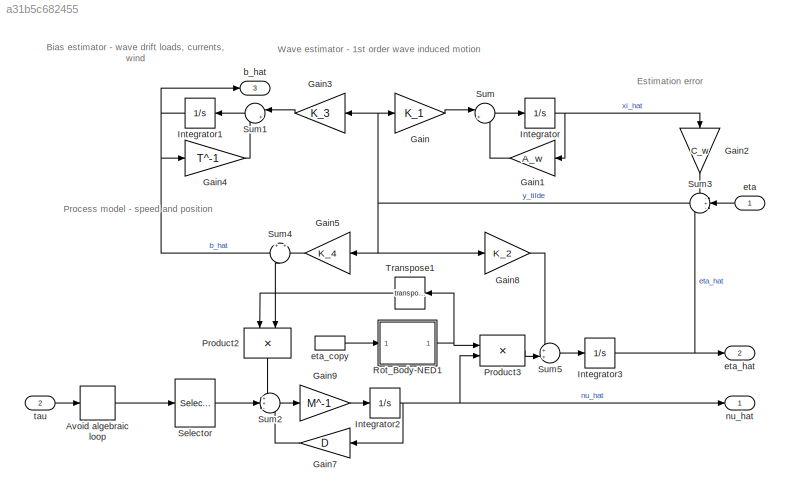
MODEL slx_a31b5c682455
KIND model
CONFIG AbsTol = auto
CONFIG EnableMultiTasking = off
CONFIG FixedStep = 0.1
CONFIG MaxStep = auto
CONFIG MinStep = auto
CONFIG RelTol = 1e-3
CONFIG SampleTimeConstraint = Unconstrained
CONFIG Solver = FixedStepAuto
CONFIG SolverName = FixedStepAuto
CONFIG StartTime = 0.0
CONFIG StopTime = 300
BLOCK [Delay] Avoid algebraic loop
  DelayLength = 1
  InputPortMap = u0
  Ports = [1, 1]
BLOCK [Gain] Gain
  Gain = K_1
  Multiplication = Matrix(K*u)
  OutDataTypeStr = Inherit: Inherit via internal rule
  ParamDataTypeStr = Inherit: Inherit via internal rule
  SaturateOnIntegerOverflow = off
BLOCK [Gain] Gain1
  Gain = A_w
  Multiplication = Matrix(K*u)
  OutDataTypeStr = Inherit: Inherit via internal rule
  ParamDataTypeStr = Inherit: Inherit via internal rule
  SaturateOnIntegerOverflow = off
BLOCK [Gain] Gain2
  Gain = C_w
  Multiplication = Matrix(K*u)
  OutDataTypeStr = Inherit: Inherit via internal rule
  ParamDataTypeStr = Inherit: Inherit via internal rule
  SaturateOnIntegerOverflow = off
BLOCK [Gain] Gain3
  Gain = K_3
  Multiplication = Matrix(K*u)
  OutDataTypeStr = Inherit: Inherit via internal rule
  ParamDataTypeStr = Inherit: Inherit via internal rule
  SaturateOnIntegerOverflow = off
BLOCK [Gain] Gain4
  Gain = T^-1
  Multiplication = Matrix(K*u)
  OutDataTypeStr = Inherit: Inherit via internal rule
  ParamDataTypeStr = Inherit: Inherit via internal rule
  SaturateOnIntegerOverflow = off
BLOCK [Gain] Gain5
  Gain = K_4
  Multiplication = Matrix(K*u)
  OutDataTypeStr = Inherit: Inherit via internal rule
  ParamDataTypeStr = Inherit: Inherit via internal rule
  SaturateOnIntegerOverflow = off
BLOCK [Gain] Gain7
  Gain = D
  Multiplication = Matrix(K*u)
  OutDataTypeStr = Inherit: Inherit via internal rule
  ParamDataTypeStr = Inherit: Inherit via internal rule
  SaturateOnIntegerOverflow = off
BLOCK [Gain] Gain8
  Gain = K_2
  Multiplication = Matrix(K*u)
  OutDataTypeStr = Inherit: Inherit via internal rule
  ParamDataTypeStr = Inherit: Inherit via internal rule
  SaturateOnIntegerOverflow = off
BLOCK [Gain] Gain9
  Gain = M^-1
  Multiplication = Matrix(K*u)
  OutDataTypeStr = Inherit: Inherit via internal rule
  ParamDataTypeStr = Inherit: Inherit via internal rule
  SaturateOnIntegerOverflow = off
BLOCK [Integrator] Integrator
  Ports = [1, 1]
BLOCK [Integrator] Integrator1
  Ports = [1, 1]
BLOCK [Integrator] Integrator2
  Ports = [1, 1]
BLOCK [Integrator] Integrator3
  Ports = [1, 1]
BLOCK [Product] Product2
  InputSameDT = off
  Multiplication = Matrix(*)
  OutDataTypeStr = Inherit: Inherit via internal rule
  Ports = [2, 1]
  RndMeth = Floor
  SaturateOnIntegerOverflow = off
BLOCK [Product] Product3
  InputSameDT = off
  Multiplication = Matrix(*)
  OutDataTypeStr = Inherit: Inherit via internal rule
  Ports = [2, 1]
  RndMeth = Floor
  SaturateOnIntegerOverflow = off
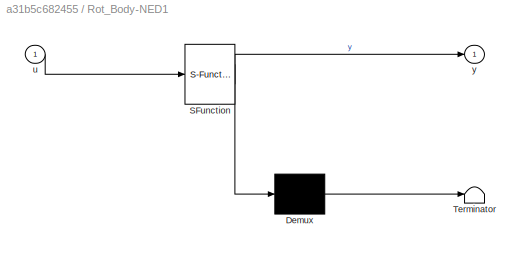
BLOCK [SubSystem] Rot_Body-NED1
  ErrorFcn = Stateflow.Translate.translate
  PermitHierarchicalResolution = ExplicitOnly
  Ports = [1, 1]
  RequestExecContextInheritance = off
  SFBlockType = MATLAB Function
  TreatAsAtomicUnit = on
BLOCK [Demux] Rot_Body-NED1/ Demux 
  Outputs = 1
  Ports = [1, 1]
BLOCK [S-Function] Rot_Body-NED1/ SFunction 
  EnableBusSupport = on
  FunctionName = sf_sfun
  PortCounts = [1 2]
  Ports = [1, 2]
  SFcnIsStateOwnerBlock = off
  SFunctionDeploymentMode = off
  Tag = Stateflow S-Function NPO 2
BLOCK [Terminator] Rot_Body-NED1/ Terminator 
BLOCK [Inport] Rot_Body-NED1/u
  IconDisplay = Port number
BLOCK [Outport] Rot_Body-NED1/y
  IconDisplay = Port number
BLOCK [Selector] Selector
  IndexOptions = Index vector (dialog)
  Indices = [1 2 6]
  InputPortWidth = 6
  OutputSizes = 1
  Ports = [1, 1]
BLOCK [Sum] Sum
  IconShape = round
  InputSameDT = off
  Inputs = |++
  OutDataTypeStr = Inherit: Inherit via internal rule
  Ports = [2, 1]
  SaturateOnIntegerOverflow = off
BLOCK [Sum] Sum1
  IconShape = round
  InputSameDT = off
  Inputs = |+-
  OutDataTypeStr = Inherit: Inherit via internal rule
  Ports = [2, 1]
  SaturateOnIntegerOverflow = off
BLOCK [Sum] Sum2
  IconShape = round
  InputSameDT = off
  Inputs = ++-
  OutDataTypeStr = Inherit: Inherit via internal rule
  Ports = [3, 1]
  SaturateOnIntegerOverflow = off
BLOCK [Sum] Sum3
  IconShape = round
  InputSameDT = off
  Inputs = -+-
  OutDataTypeStr = Inherit: Inherit via internal rule
  Ports = [3, 1]
  SaturateOnIntegerOverflow = off
BLOCK [Sum] Sum4
  IconShape = round
  InputSameDT = off
  Inputs = +|+
  OutDataTypeStr = Inherit: Inherit via internal rule
  Ports = [2, 1]
  SaturateOnIntegerOverflow = off
BLOCK [Sum] Sum5
  IconShape = round
  InputSameDT = off
  Inputs = ++|
  OutDataTypeStr = Inherit: Inherit via internal rule
  Ports = [2, 1]
  SaturateOnIntegerOverflow = off
BLOCK [Math] Transpose1
  Operator = transpose
  Ports = [1, 1]
BLOCK [Outport] b_hat
  IconDisplay = Port number
  Port = 3
  PortDimensions = 3
BLOCK [Inport] eta
  IconDisplay = Port number
  PortDimensions = 3
BLOCK [InportShadow] eta_copy
  IconDisplay = Port number
  PortDimensions = 3
BLOCK [Outport] eta_hat
  IconDisplay = Port number
  Port = 2
  PortDimensions = 3
BLOCK [Outport] nu_hat
  IconDisplay = Port number
  PortDimensions = 3
BLOCK [Inport] tau
  IconDisplay = Port number
  Port = 2
  PortDimensions = 6
ANNOTATION (root): Bias estimator - wave drift loads, currents, wind
ANNOTATION (root): Estimation error
ANNOTATION (root): Process model - speed and position
ANNOTATION (root): Wave estimator - 1st order wave induced motion
LINE Avoid algebraic loop:1 -> Selector:1
LINE Gain1:1 -> Sum:2
LINE Gain2:1 -> Sum3:1
LINE Gain3:1 -> Sum1:1
LINE Gain4:1 -> Sum1:2
LINE Gain5:1 -> Sum4:2
LINE Gain7:1 -> Sum2:3
LINE Gain8:1 -> Sum5:1
LINE Gain9:1 -> Integrator2:1
LINE Gain:1 -> Sum:1
NET Integrator1:1 -> Gain4:1, Sum4:1, b_hat:1
NET Integrator2:1 -> Gain7:1, Product3:2, nu_hat:1
NET Integrator3:1 -> Sum3:3, eta_hat:1
NET Integrator:1 -> Gain1:1, Gain2:1
LINE Product2:1 -> Sum2:1
LINE Product3:1 -> Sum5:2
NET Rot_Body-NED1:1 -> Product3:1, Transpose1:1
LINE Selector:1 -> Sum2:2
LINE Sum1:1 -> Integrator1:1
LINE Sum2:1 -> Gain9:1
NET Sum3:1 -> Gain3:1, Gain5:1, Gain8:1, Gain:1
LINE Sum4:1 -> Product2:2
LINE Sum5:1 -> Integrator3:1
LINE Sum:1 -> Integrator:1
LINE Transpose1:1 -> Product2:1
LINE eta:1 -> Sum3:2
LINE eta_copy:1 -> Rot_Body-NED1:1
LINE tau:1 -> Avoid algebraic loop:1
note: NET lines group one-source signal fan-out (src -> all destinations, sorted); 1:1 wires keep LINE
CHART Rot_Body-NED1 states=1 transitions=1
  STATE_LABEL 'eML_blk_kernel()'
  STATE_LABEL 'SCRIPT:\nfunction y = rot_zyx(u)\n% Rzyx: Available in the MSS-toolbox\ny = Rzyx(0, 0, u(3));\n'
